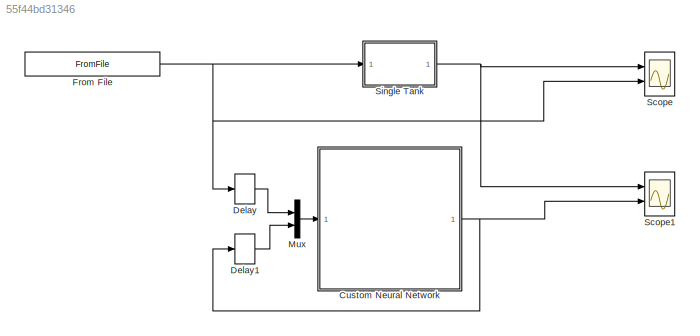
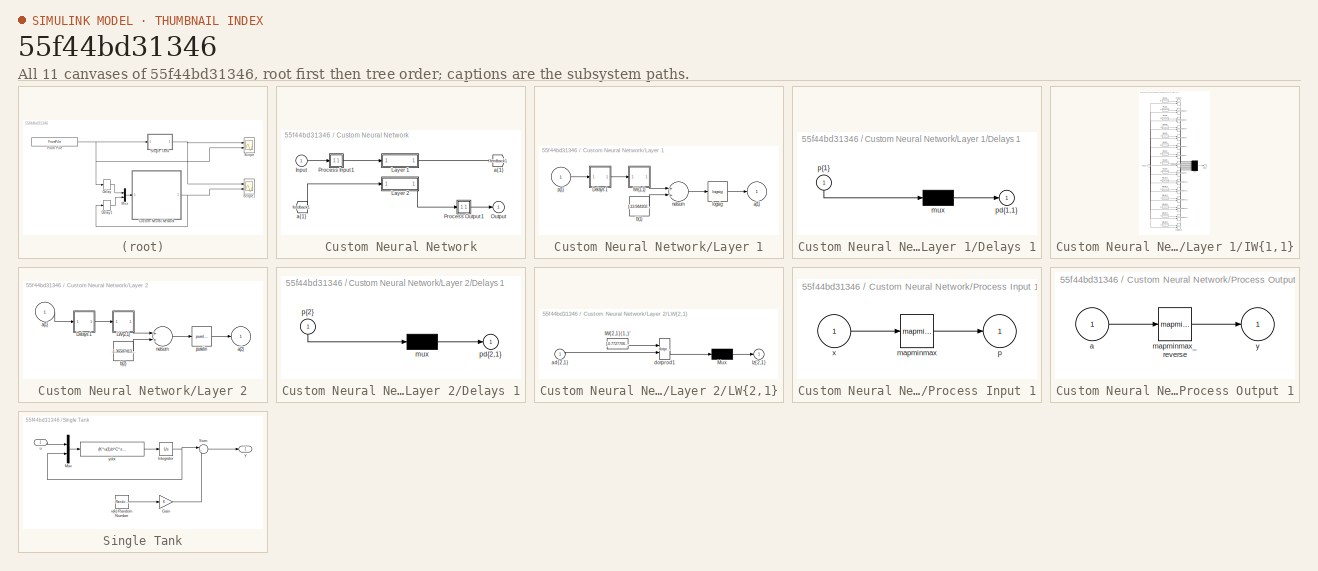
[diagram: thumbnail index - all 11 canvases of the model, root first then tree order]
MODEL slx_55f44bd31346
KIND model
CONFIG AbsTol = auto
CONFIG EnableMultiTasking = off
CONFIG FixedStep = 0.5
CONFIG MaxStep = auto
CONFIG MinStep = auto
CONFIG RelTol = 1e-3
CONFIG SampleTimeConstraint = Unconstrained
CONFIG Solver = ode5
CONFIG SolverName = ode5
CONFIG StartTime = 0.0
CONFIG StopTime = 1000
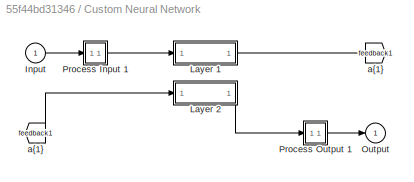
BLOCK [SubSystem] Custom Neural Network
  Ports = [1, 1]
  RequestExecContextInheritance = off
BLOCK [From] Custom Neural Network/ a{1} 
  GotoTag = feedback1
BLOCK [Inport] Custom Neural Network/Input
  IconDisplay = Port number
  PortDimensions = 2
BLOCK [SubSystem] Custom Neural Network/Layer 1
  Ports = [1, 1]
  RequestExecContextInheritance = off
BLOCK [SubSystem] Custom Neural Network/Layer 1/Delays 1
  Ports = [1, 1]
  RequestExecContextInheritance = off
BLOCK [Mux] Custom Neural Network/Layer 1/Delays 1/mux
  Inputs = 1
  Ports = [1, 1]
BLOCK [Outport] Custom Neural Network/Layer 1/Delays 1/pd{1,1}
  IconDisplay = Port number
BLOCK [Inport] Custom Neural Network/Layer 1/Delays 1/p{1}
  IconDisplay = Port number
  PortDimensions = 2
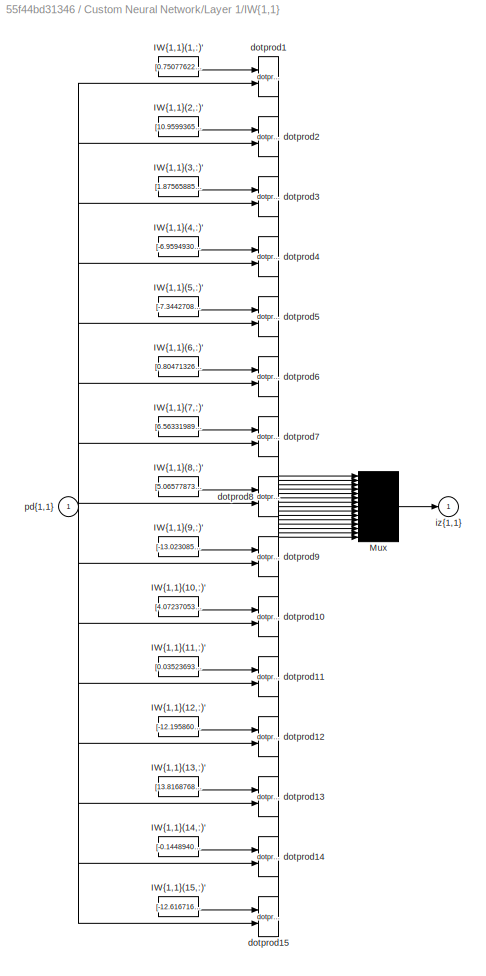
BLOCK [SubSystem] Custom Neural Network/Layer 1/IW{1,1}
  Ports = [1, 1]
  RequestExecContextInheritance = off
BLOCK [Constant] Custom Neural Network/Layer 1/IW{1,1}/IW{1,1}(1,:)'
  Value = [0.7507762209225423699621160267270170152187347412109375;9.956608802697740401299597579054534435272216796875]
BLOCK [Constant] Custom Neural Network/Layer 1/IW{1,1}/IW{1,1}(10,:)'
  Value = [4.07237053277099025905272355885244905948638916015625;-5.6253155541355130964120689895935356616973876953125]
BLOCK [Constant] Custom Neural Network/Layer 1/IW{1,1}/IW{1,1}(11,:)'
  Value = [0.03523693050600980314346344357545603998005390167236328125;1.130553532403816507923011158709414303302764892578125]
BLOCK [Constant] Custom Neural Network/Layer 1/IW{1,1}/IW{1,1}(12,:)'
  Value = [-12.195860595803605264109137351624667644500732421875;-3.43806184701035011386238693376071751117706298828125]
BLOCK [Constant] Custom Neural Network/Layer 1/IW{1,1}/IW{1,1}(13,:)'
  Value = [13.8168768333285552074585211812518537044525146484375;-0.039567331952346025680800067902964656241238117218017578125]
BLOCK [Constant] Custom Neural Network/Layer 1/IW{1,1}/IW{1,1}(14,:)'
  Value = [-0.1448940501657133561597134985277079977095127105712890625;-3.5818453074142322378747849143110215663909912109375]
BLOCK [Constant] Custom Neural Network/Layer 1/IW{1,1}/IW{1,1}(15,:)'
  Value = [-12.6167168413203540922040701843798160552978515625;0.4059695433755325932878577077644877135753631591796875]
BLOCK [Constant] Custom Neural Network/Layer 1/IW{1,1}/IW{1,1}(2,:)'
  Value = [10.9599365198809532984114412101916968822479248046875;-0.0846267106742777108774333783003385178744792938232421875]
BLOCK [Constant] Custom Neural Network/Layer 1/IW{1,1}/IW{1,1}(3,:)'
  Value = [1.87565885363555562292958711623214185237884521484375;-5.3475379431276461872357685933820903301239013671875]
BLOCK [Constant] Custom Neural Network/Layer 1/IW{1,1}/IW{1,1}(4,:)'
  Value = [-6.95949306428271885494041271158494055271148681640625;-3.52898772575236474580151480040512979030609130859375]
BLOCK [Constant] Custom Neural Network/Layer 1/IW{1,1}/IW{1,1}(5,:)'
  Value = [-7.34427086755920566218946987646631896495819091796875;8.0717997595673214306088993907906115055084228515625]
BLOCK [Constant] Custom Neural Network/Layer 1/IW{1,1}/IW{1,1}(6,:)'
  Value = [0.80471326427354938903846459652413614094257354736328125;6.4792371748942247933200633269734680652618408203125]
BLOCK [Constant] Custom Neural Network/Layer 1/IW{1,1}/IW{1,1}(7,:)'
  Value = [6.56331989522315240037642070092260837554931640625;-10.1143782353785720573569051339291036128997802734375]
BLOCK [Constant] Custom Neural Network/Layer 1/IW{1,1}/IW{1,1}(8,:)'
  Value = [5.0657787300106900119089914369396865367889404296875;-11.9482863286096598898211595951579511165618896484375]
BLOCK [Constant] Custom Neural Network/Layer 1/IW{1,1}/IW{1,1}(9,:)'
  Value = [-13.0230856023854126846117651439271867275238037109375;7.9319449566575155330383495311252772808074951171875]
BLOCK [Mux] Custom Neural Network/Layer 1/IW{1,1}/Mux
  Inputs = 15
  Ports = [15, 1]
BLOCK [Reference] Custom Neural Network/Layer 1/IW{1,1}/dotprod1  REF=neural/Weight Functions/dotprod
  Ports = [2, 1]
  SourceBlock = neural/Weight Functions/dotprod
  SourceProductBaseCode = NN
  SourceProductName = Neural Network Toolbox
  SourceType = DOTPROD
BLOCK [Reference] Custom Neural Network/Layer 1/IW{1,1}/dotprod10  REF=neural/Weight Functions/dotprod
  Ports = [2, 1]
  SourceBlock = neural/Weight Functions/dotprod
  SourceProductBaseCode = NN
  SourceProductName = Neural Network Toolbox
  SourceType = DOTPROD
BLOCK [Reference] Custom Neural Network/Layer 1/IW{1,1}/dotprod11  REF=neural/Weight Functions/dotprod
  Ports = [2, 1]
  SourceBlock = neural/Weight Functions/dotprod
  SourceProductBaseCode = NN
  SourceProductName = Neural Network Toolbox
  SourceType = DOTPROD
BLOCK [Reference] Custom Neural Network/Layer 1/IW{1,1}/dotprod12  REF=neural/Weight Functions/dotprod
  Ports = [2, 1]
  SourceBlock = neural/Weight Functions/dotprod
  SourceProductBaseCode = NN
  SourceProductName = Neural Network Toolbox
  SourceType = DOTPROD
BLOCK [Reference] Custom Neural Network/Layer 1/IW{1,1}/dotprod13  REF=neural/Weight Functions/dotprod
  Ports = [2, 1]
  SourceBlock = neural/Weight Functions/dotprod
  SourceProductBaseCode = NN
  SourceProductName = Neural Network Toolbox
  SourceType = DOTPROD
BLOCK [Reference] Custom Neural Network/Layer 1/IW{1,1}/dotprod14  REF=neural/Weight Functions/dotprod
  Ports = [2, 1]
  SourceBlock = neural/Weight Functions/dotprod
  SourceProductBaseCode = NN
  SourceProductName = Neural Network Toolbox
  SourceType = DOTPROD
BLOCK [Reference] Custom Neural Network/Layer 1/IW{1,1}/dotprod15  REF=neural/Weight Functions/dotprod
  Ports = [2, 1]
  SourceBlock = neural/Weight Functions/dotprod
  SourceProductBaseCode = NN
  SourceProductName = Neural Network Toolbox
  SourceType = DOTPROD
BLOCK [Reference] Custom Neural Network/Layer 1/IW{1,1}/dotprod2  REF=neural/Weight Functions/dotprod
  Ports = [2, 1]
  SourceBlock = neural/Weight Functions/dotprod
  SourceProductBaseCode = NN
  SourceProductName = Neural Network Toolbox
  SourceType = DOTPROD
BLOCK [Reference] Custom Neural Network/Layer 1/IW{1,1}/dotprod3  REF=neural/Weight Functions/dotprod
  Ports = [2, 1]
  SourceBlock = neural/Weight Functions/dotprod
  SourceProductBaseCode = NN
  SourceProductName = Neural Network Toolbox
  SourceType = DOTPROD
BLOCK [Reference] Custom Neural Network/Layer 1/IW{1,1}/dotprod4  REF=neural/Weight Functions/dotprod
  Ports = [2, 1]
  SourceBlock = neural/Weight Functions/dotprod
  SourceProductBaseCode = NN
  SourceProductName = Neural Network Toolbox
  SourceType = DOTPROD
BLOCK [Reference] Custom Neural Network/Layer 1/IW{1,1}/dotprod5  REF=neural/Weight Functions/dotprod
  Ports = [2, 1]
  SourceBlock = neural/Weight Functions/dotprod
  SourceProductBaseCode = NN
  SourceProductName = Neural Network Toolbox
  SourceType = DOTPROD
BLOCK [Reference] Custom Neural Network/Layer 1/IW{1,1}/dotprod6  REF=neural/Weight Functions/dotprod
  Ports = [2, 1]
  SourceBlock = neural/Weight Functions/dotprod
  SourceProductBaseCode = NN
  SourceProductName = Neural Network Toolbox
  SourceType = DOTPROD
BLOCK [Reference] Custom Neural Network/Layer 1/IW{1,1}/dotprod7  REF=neural/Weight Functions/dotprod
  Ports = [2, 1]
  SourceBlock = neural/Weight Functions/dotprod
  SourceProductBaseCode = NN
  SourceProductName = Neural Network Toolbox
  SourceType = DOTPROD
BLOCK [Reference] Custom Neural Network/Layer 1/IW{1,1}/dotprod8  REF=neural/Weight Functions/dotprod
  Ports = [2, 1]
  SourceBlock = neural/Weight Functions/dotprod
  SourceProductBaseCode = NN
  SourceProductName = Neural Network Toolbox
  SourceType = DOTPROD
BLOCK [Reference] Custom Neural Network/Layer 1/IW{1,1}/dotprod9  REF=neural/Weight Functions/dotprod
  Ports = [2, 1]
  SourceBlock = neural/Weight Functions/dotprod
  SourceProductBaseCode = NN
  SourceProductName = Neural Network Toolbox
  SourceType = DOTPROD
BLOCK [Outport] Custom Neural Network/Layer 1/IW{1,1}/iz{1,1}
  IconDisplay = Port number
BLOCK [Inport] Custom Neural Network/Layer 1/IW{1,1}/pd{1,1}
  IconDisplay = Port number
  PortDimensions = 2
BLOCK [Outport] Custom Neural Network/Layer 1/a{1}
  IconDisplay = Port number
  InitialOutput = [0;0;0;0;0;0;0;0;0;0;0;0;0;0;0]
BLOCK [Constant] Custom Neural Network/Layer 1/b{1}
  Value = [-13.9441026157687470998780554509721696376800537109375;-8.018953189595574571058023138903081417083740234375;-6.08888915966495591902685191598720848560333251953125;2.828843675796608891914729611016809940338134765625;-0.41627422187610496617793387486017309129238128662109375;1.14220279481600872628632714622654020786285400390625;3.786434522776111588626690718228928744792938232421875;-1.542690958572659143399...<+408ch>
BLOCK [Reference] Custom Neural Network/Layer 1/logsig  REF=neural/Transfer Functions/logsig
  Ports = [1, 1]
  SourceBlock = neural/Transfer Functions/logsig
  SourceProductBaseCode = NN
  SourceProductName = Neural Network Toolbox
  SourceType = LOGSIG
BLOCK [Sum] Custom Neural Network/Layer 1/netsum
  Inputs = 2
  Ports = [2, 1]
BLOCK [Inport] Custom Neural Network/Layer 1/p{1}
  IconDisplay = Port number
  PortDimensions = 2
BLOCK [SubSystem] Custom Neural Network/Layer 2
  Ports = [1, 1]
  RequestExecContextInheritance = off
BLOCK [SubSystem] Custom Neural Network/Layer 2/Delays 1
  Ports = [1, 1]
  RequestExecContextInheritance = off
BLOCK [Mux] Custom Neural Network/Layer 2/Delays 1/mux
  Inputs = 1
  Ports = [1, 1]
BLOCK [Outport] Custom Neural Network/Layer 2/Delays 1/pd{2,1}
  IconDisplay = Port number
BLOCK [Inport] Custom Neural Network/Layer 2/Delays 1/p{2}
  IconDisplay = Port number
  PortDimensions = 15
BLOCK [SubSystem] Custom Neural Network/Layer 2/LW{2,1}
  Ports = [1, 1]
  RequestExecContextInheritance = off
BLOCK [Constant] Custom Neural Network/Layer 2/LW{2,1}/IW{2,1}(1,:)'
  Value = [-0.77277067570789570449818484121351502835750579833984375;-0.002915210598484087485549043350374631700105965137481689453125;-0.155629261014511632854606659748242236673831939697265625;0.00854676684841755053556600074671223410405218601226806640625;0.008151271652815879342757199310653959400951862335205078125;0.001821041078010297679934392789391495171003043651580810546875;0.000610808589195286320838729210436...<+515ch>
BLOCK [Mux] Custom Neural Network/Layer 2/LW{2,1}/Mux
  Inputs = 1
  Ports = [1, 1]
BLOCK [Inport] Custom Neural Network/Layer 2/LW{2,1}/ad{2,1}
  IconDisplay = Port number
  PortDimensions = 15
BLOCK [Reference] Custom Neural Network/Layer 2/LW{2,1}/dotprod1  REF=neural/Weight Functions/dotprod
  Ports = [2, 1]
  SourceBlock = neural/Weight Functions/dotprod
  SourceProductBaseCode = NN
  SourceProductName = Neural Network Toolbox
  SourceType = DOTPROD
BLOCK [Outport] Custom Neural Network/Layer 2/LW{2,1}/lz{2,1}
  IconDisplay = Port number
BLOCK [Inport] Custom Neural Network/Layer 2/a{1} 
  IconDisplay = Port number
  PortDimensions = 15
BLOCK [Outport] Custom Neural Network/Layer 2/a{2}
  IconDisplay = Port number
  InitialOutput = 0
BLOCK [Constant] Custom Neural Network/Layer 2/b{2}
  Value = -1.3658741347082410388935613809735514223575592041015625
BLOCK [Sum] Custom Neural Network/Layer 2/netsum
  Inputs = 2
  Ports = [2, 1]
BLOCK [Reference] Custom Neural Network/Layer 2/purelin  REF=neural/Transfer Functions/purelin
  Ports = [1, 1]
  SourceBlock = neural/Transfer Functions/purelin
  SourceProductBaseCode = NN
  SourceProductName = Neural Network Toolbox
  SourceType = PURELIN
BLOCK [Outport] Custom Neural Network/Output
  IconDisplay = Port number
  InitialOutput = 0
BLOCK [SubSystem] Custom Neural Network/Process Input 1
  Ports = [1, 1]
  RequestExecContextInheritance = off
BLOCK [Reference] Custom Neural Network/Process Input 1/mapminmax  REF=neural/Processing Functions/mapminmax
  Ports = [1, 1]
  SourceBlock = neural/Processing Functions/mapminmax
  SourceProductBaseCode = NN
  SourceProductName = Neural Network Toolbox
  SourceType = MAPMINMAX Preprocess
BLOCK [Outport] Custom Neural Network/Process Input 1/p
  IconDisplay = Port number
  PortDimensions = 2
BLOCK [Inport] Custom Neural Network/Process Input 1/x
  IconDisplay = Port number
  PortDimensions = 2
BLOCK [SubSystem] Custom Neural Network/Process Output 1
  Ports = [1, 1]
  RequestExecContextInheritance = off
BLOCK [Inport] Custom Neural Network/Process Output 1/a
  IconDisplay = Port number
  PortDimensions = 1
BLOCK [Reference] Custom Neural Network/Process Output 1/mapminmax_reverse  REF=neural/Processing Functions/mapminmax_reverse
  Ports = [1, 1]
  SourceBlock = neural/Processing Functions/mapminmax_reverse
  SourceProductBaseCode = NN
  SourceProductName = Neural Network Toolbox
  SourceType = MAPMINMAX Reverse Process
BLOCK [Outport] Custom Neural Network/Process Output 1/y
  IconDisplay = Port number
  PortDimensions = 1
BLOCK [Goto] Custom Neural Network/a{1}
  GotoTag = feedback1
BLOCK [Delay] Delay
  DelayLength = 1
  InputPortMap = u0
  Ports = [1, 1]
BLOCK [Delay] Delay1
  DelayLength = 1
  InputPortMap = u0
  Ports = [1, 1]
BLOCK [FromFile] From File
  FileName = SingleTank_Input.mat
BLOCK [Mux] Mux
  DisplayOption = bar
  Inputs = 2
  Ports = [2, 1]
BLOCK [Scope] Scope
  Floating = off
  NumInputPorts = 2
  Ports = [2]
  ScopeSpecificationString = Simulink.scopes.TimeScopeBlockCfg('CurrentConfiguration', extmgr.ConfigurationSet(extmgr.Configuration('Core','General UI',true,'FigureColor',[1 1 1]),extmgr.Configuration('Core','Source UI',true),extmgr.Configuration('Sources','WiredSimulink',true),extmgr.Configuration('Visuals','Time Domain',true,'SerializedDisplays',{struct('MinYLimReal','-12.17274','MaxYLimReal','113.23859','YLabelReal','','Mi...<+2311ch>
BLOCK [Scope] Scope1
  Floating = off
  NumInputPorts = 2
  Ports = [2]
  ScopeSpecificationString = Simulink.scopes.TimeScopeBlockCfg('CurrentConfiguration', extmgr.ConfigurationSet(extmgr.Configuration('Core','General UI',true,'FigureColor',[1 1 1]),extmgr.Configuration('Core','Source UI',true),extmgr.Configuration('Sources','WiredSimulink',true,'DataLoggingVariableName','ScopeData1'),extmgr.Configuration('Visuals','Time Domain',true,'SerializedDisplays',{struct('MinYLimReal','-12.17274','MaxYL...<+1818ch>
BLOCK [SubSystem] Single Tank
  Ports = [1, 1]
  RequestExecContextInheritance = off
BLOCK [Gain] Single Tank/Gain
  OutDataTypeStr = Inherit: Inherit via internal rule
  ParamDataTypeStr = Inherit: Inherit via internal rule
  SaturateOnIntegerOverflow = off
BLOCK [Integrator] Single Tank/Integrator
  LimitOutput = on
  LowerSaturationLimit = 0
  Ports = [1, 1]
  UpperSaturationLimit = 100
BLOCK [Mux] Single Tank/Mux
  DisplayOption = bar
  Inputs = 2
  Ports = [2, 1]
BLOCK [Sum] Single Tank/Sum
  IconShape = round
  InputSameDT = off
  Inputs = |++
  OutDataTypeStr = Inherit: Inherit via internal rule
  Ports = [2, 1]
  SaturateOnIntegerOverflow = off
BLOCK [Inport] Single Tank/u
  IconDisplay = Port number
BLOCK [RandomNumber] Single Tank/v(k) Random Number
  Variance = 0.1
BLOCK [Outport] Single Tank/y
  IconDisplay = Port number
BLOCK [Fcn] Single Tank/ydot
  Expr = (K*u(1)-b*C*sqrt(2*g*u(2)))/A
LINE Custom Neural Network/ a{1} :1 -> Custom Neural Network/Layer 2:1
LINE Custom Neural Network/Input:1 -> Custom Neural Network/Process Input 1:1
LINE Custom Neural Network/Layer 1/Delays 1/mux:1 -> Custom Neural Network/Layer 1/Delays 1/pd{1,1}:1
LINE Custom Neural Network/Layer 1/Delays 1/p{1}:1 -> Custom Neural Network/Layer 1/Delays 1/mux:1
LINE Custom Neural Network/Layer 1/Delays 1:1 -> Custom Neural Network/Layer 1/IW{1,1}:1
LINE Custom Neural Network/Layer 1/IW{1,1}/IW{1,1}(1,:)':1 -> Custom Neural Network/Layer 1/IW{1,1}/dotprod1:1
LINE Custom Neural Network/Layer 1/IW{1,1}/IW{1,1}(10,:)':1 -> Custom Neural Network/Layer 1/IW{1,1}/dotprod10:1
LINE Custom Neural Network/Layer 1/IW{1,1}/IW{1,1}(11,:)':1 -> Custom Neural Network/Layer 1/IW{1,1}/dotprod11:1
LINE Custom Neural Network/Layer 1/IW{1,1}/IW{1,1}(12,:)':1 -> Custom Neural Network/Layer 1/IW{1,1}/dotprod12:1
LINE Custom Neural Network/Layer 1/IW{1,1}/IW{1,1}(13,:)':1 -> Custom Neural Network/Layer 1/IW{1,1}/dotprod13:1
LINE Custom Neural Network/Layer 1/IW{1,1}/IW{1,1}(14,:)':1 -> Custom Neural Network/Layer 1/IW{1,1}/dotprod14:1
LINE Custom Neural Network/Layer 1/IW{1,1}/IW{1,1}(15,:)':1 -> Custom Neural Network/Layer 1/IW{1,1}/dotprod15:1
LINE Custom Neural Network/Layer 1/IW{1,1}/IW{1,1}(2,:)':1 -> Custom Neural Network/Layer 1/IW{1,1}/dotprod2:1
LINE Custom Neural Network/Layer 1/IW{1,1}/IW{1,1}(3,:)':1 -> Custom Neural Network/Layer 1/IW{1,1}/dotprod3:1
LINE Custom Neural Network/Layer 1/IW{1,1}/IW{1,1}(4,:)':1 -> Custom Neural Network/Layer 1/IW{1,1}/dotprod4:1
LINE Custom Neural Network/Layer 1/IW{1,1}/IW{1,1}(5,:)':1 -> Custom Neural Network/Layer 1/IW{1,1}/dotprod5:1
LINE Custom Neural Network/Layer 1/IW{1,1}/IW{1,1}(6,:)':1 -> Custom Neural Network/Layer 1/IW{1,1}/dotprod6:1
LINE Custom Neural Network/Layer 1/IW{1,1}/IW{1,1}(7,:)':1 -> Custom Neural Network/Layer 1/IW{1,1}/dotprod7:1
LINE Custom Neural Network/Layer 1/IW{1,1}/IW{1,1}(8,:)':1 -> Custom Neural Network/Layer 1/IW{1,1}/dotprod8:1
LINE Custom Neural Network/Layer 1/IW{1,1}/IW{1,1}(9,:)':1 -> Custom Neural Network/Layer 1/IW{1,1}/dotprod9:1
LINE Custom Neural Network/Layer 1/IW{1,1}/Mux:1 -> Custom Neural Network/Layer 1/IW{1,1}/iz{1,1}:1
LINE Custom Neural Network/Layer 1/IW{1,1}/dotprod10:1 -> Custom Neural Network/Layer 1/IW{1,1}/Mux:10
LINE Custom Neural Network/Layer 1/IW{1,1}/dotprod11:1 -> Custom Neural Network/Layer 1/IW{1,1}/Mux:11
LINE Custom Neural Network/Layer 1/IW{1,1}/dotprod12:1 -> Custom Neural Network/Layer 1/IW{1,1}/Mux:12
LINE Custom Neural Network/Layer 1/IW{1,1}/dotprod13:1 -> Custom Neural Network/Layer 1/IW{1,1}/Mux:13
LINE Custom Neural Network/Layer 1/IW{1,1}/dotprod14:1 -> Custom Neural Network/Layer 1/IW{1,1}/Mux:14
LINE Custom Neural Network/Layer 1/IW{1,1}/dotprod15:1 -> Custom Neural Network/Layer 1/IW{1,1}/Mux:15
LINE Custom Neural Network/Layer 1/IW{1,1}/dotprod1:1 -> Custom Neural Network/Layer 1/IW{1,1}/Mux:1
LINE Custom Neural Network/Layer 1/IW{1,1}/dotprod2:1 -> Custom Neural Network/Layer 1/IW{1,1}/Mux:2
LINE Custom Neural Network/Layer 1/IW{1,1}/dotprod3:1 -> Custom Neural Network/Layer 1/IW{1,1}/Mux:3
LINE Custom Neural Network/Layer 1/IW{1,1}/dotprod4:1 -> Custom Neural Network/Layer 1/IW{1,1}/Mux:4
LINE Custom Neural Network/Layer 1/IW{1,1}/dotprod5:1 -> Custom Neural Network/Layer 1/IW{1,1}/Mux:5
LINE Custom Neural Network/Layer 1/IW{1,1}/dotprod6:1 -> Custom Neural Network/Layer 1/IW{1,1}/Mux:6
LINE Custom Neural Network/Layer 1/IW{1,1}/dotprod7:1 -> Custom Neural Network/Layer 1/IW{1,1}/Mux:7
LINE Custom Neural Network/Layer 1/IW{1,1}/dotprod8:1 -> Custom Neural Network/Layer 1/IW{1,1}/Mux:8
LINE Custom Neural Network/Layer 1/IW{1,1}/dotprod9:1 -> Custom Neural Network/Layer 1/IW{1,1}/Mux:9
NET Custom Neural Network/Layer 1/IW{1,1}/pd{1,1}:1 -> Custom Neural Network/Layer 1/IW{1,1}/dotprod10:2, Custom Neural Network/Layer 1/IW{1,1}/dotprod11:2, Custom Neural Network/Layer 1/IW{1,1}/dotprod12:2, Custom Neural Network/Layer 1/IW{1,1}/dotprod13:2, Custom Neural Network/Layer 1/IW{1,1}/dotprod14:2, Custom Neural Network/Layer 1/IW{1,1}/dotprod15:2, Custom Neural Network/Layer 1/IW{1,1}/dotprod1:2, Custom Neural Network/Layer 1/IW{1,1}/dotprod2:2, Custom Neural Network/Layer 1/IW{1,1}/dotprod3:2, Custom Neural Network/Layer 1/IW{1,1}/dotprod4:2, Custom Neural Network/Layer 1/IW{1,1}/dotprod5:2, Custom Neural Network/Layer 1/IW{1,1}/dotprod6:2, Custom Neural Network/Layer 1/IW{1,1}/dotprod7:2, Custom Neural Network/Layer 1/IW{1,1}/dotprod8:2, Custom Neural Network/Layer 1/IW{1,1}/dotprod9:2
LINE Custom Neural Network/Layer 1/IW{1,1}:1 -> Custom Neural Network/Layer 1/netsum:1
LINE Custom Neural Network/Layer 1/b{1}:1 -> Custom Neural Network/Layer 1/netsum:2
LINE Custom Neural Network/Layer 1/logsig:1 -> Custom Neural Network/Layer 1/a{1}:1
LINE Custom Neural Network/Layer 1/netsum:1 -> Custom Neural Network/Layer 1/logsig:1
LINE Custom Neural Network/Layer 1/p{1}:1 -> Custom Neural Network/Layer 1/Delays 1:1
LINE Custom Neural Network/Layer 1:1 -> Custom Neural Network/a{1}:1
LINE Custom Neural Network/Layer 2/Delays 1/mux:1 -> Custom Neural Network/Layer 2/Delays 1/pd{2,1}:1
LINE Custom Neural Network/Layer 2/Delays 1/p{2}:1 -> Custom Neural Network/Layer 2/Delays 1/mux:1
LINE Custom Neural Network/Layer 2/Delays 1:1 -> Custom Neural Network/Layer 2/LW{2,1}:1
LINE Custom Neural Network/Layer 2/LW{2,1}/IW{2,1}(1,:)':1 -> Custom Neural Network/Layer 2/LW{2,1}/dotprod1:1
LINE Custom Neural Network/Layer 2/LW{2,1}/Mux:1 -> Custom Neural Network/Layer 2/LW{2,1}/lz{2,1}:1
LINE Custom Neural Network/Layer 2/LW{2,1}/ad{2,1}:1 -> Custom Neural Network/Layer 2/LW{2,1}/dotprod1:2
LINE Custom Neural Network/Layer 2/LW{2,1}/dotprod1:1 -> Custom Neural Network/Layer 2/LW{2,1}/Mux:1
LINE Custom Neural Network/Layer 2/LW{2,1}:1 -> Custom Neural Network/Layer 2/netsum:1
LINE Custom Neural Network/Layer 2/a{1} :1 -> Custom Neural Network/Layer 2/Delays 1:1
LINE Custom Neural Network/Layer 2/b{2}:1 -> Custom Neural Network/Layer 2/netsum:2
LINE Custom Neural Network/Layer 2/netsum:1 -> Custom Neural Network/Layer 2/purelin:1
LINE Custom Neural Network/Layer 2/purelin:1 -> Custom Neural Network/Layer 2/a{2}:1
LINE Custom Neural Network/Layer 2:1 -> Custom Neural Network/Process Output 1:1
LINE Custom Neural Network/Process Input 1/mapminmax:1 -> Custom Neural Network/Process Input 1/p:1
LINE Custom Neural Network/Process Input 1/x:1 -> Custom Neural Network/Process Input 1/mapminmax:1
LINE Custom Neural Network/Process Input 1:1 -> Custom Neural Network/Layer 1:1
LINE Custom Neural Network/Process Output 1/a:1 -> Custom Neural Network/Process Output 1/mapminmax_reverse:1
LINE Custom Neural Network/Process Output 1/mapminmax_reverse:1 -> Custom Neural Network/Process Output 1/y:1
LINE Custom Neural Network/Process Output 1:1 -> Custom Neural Network/Output:1
NET Custom Neural Network:1 -> Delay1:1, Scope1:2
LINE Delay1:1 -> Mux:2
LINE Delay:1 -> Mux:1
NET From File:1 -> Delay:1, Scope:2, Single Tank:1
LINE Mux:1 -> Custom Neural Network:1
LINE Single Tank/Gain:1 -> Single Tank/Sum:2
NET Single Tank/Integrator:1 -> Single Tank/Mux:2, Single Tank/Sum:1
LINE Single Tank/Mux:1 -> Single Tank/ydot:1
LINE Single Tank/Sum:1 -> Single Tank/y:1
LINE Single Tank/u:1 -> Single Tank/Mux:1
LINE Single Tank/v(k) Random Number:1 -> Single Tank/Gain:1
LINE Single Tank/ydot:1 -> Single Tank/Integrator:1
NET Single Tank:1 -> Scope1:1, Scope:1
note: NET lines group one-source signal fan-out (src -> all destinations, sorted); 1:1 wires keep LINE
